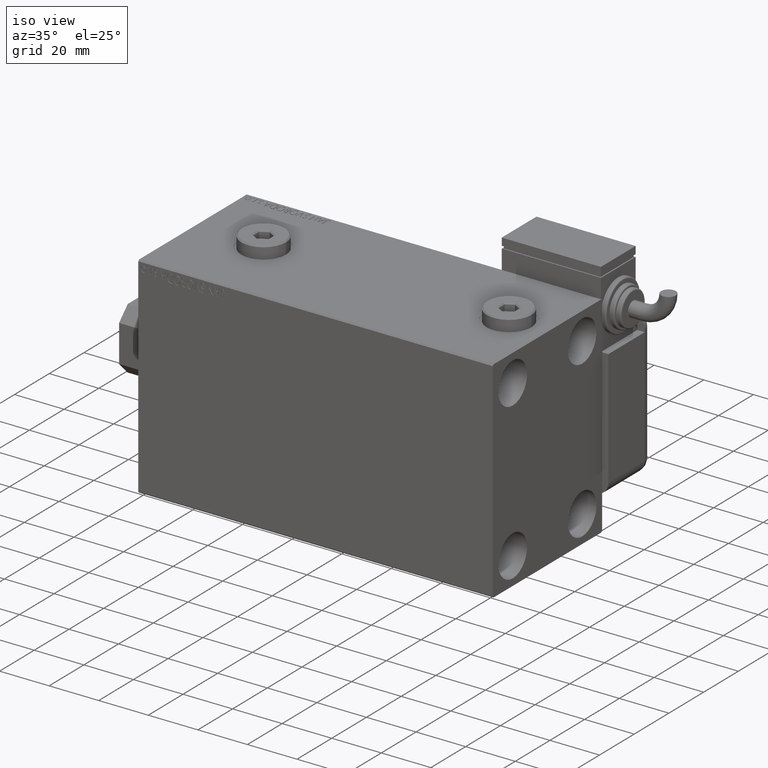
[diagram: clean part render]
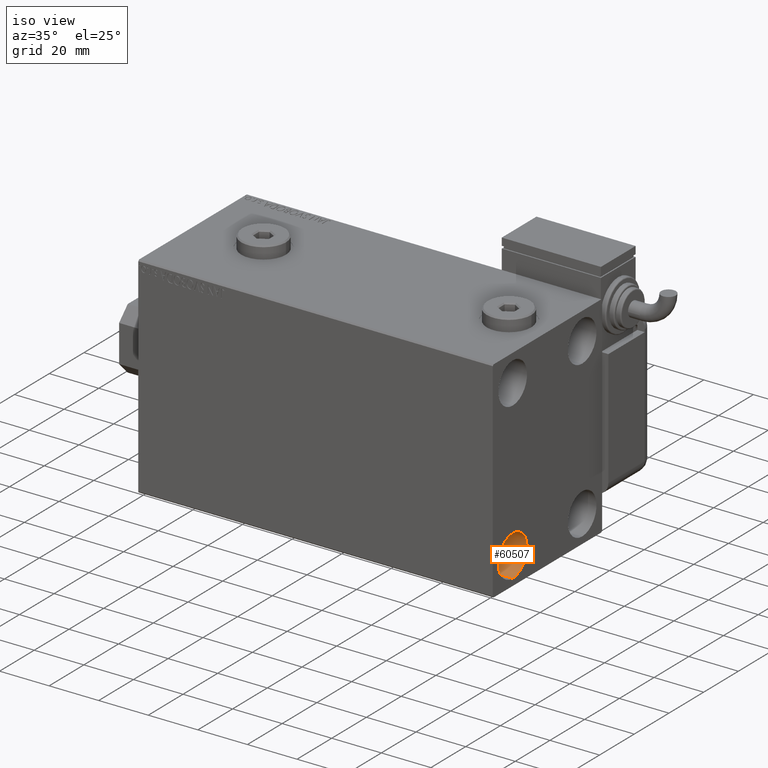
[diagram: same view with one face highlighted and labeled with its STEP entity id]
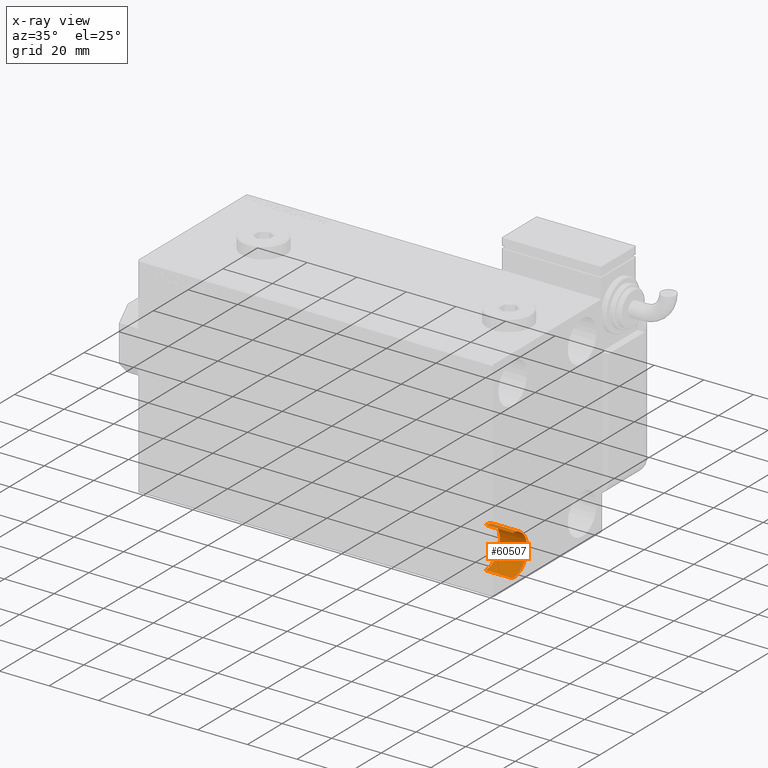
[diagram: x-ray of the same camera — body ghosted, the highlighted face saturated]
A machine part, iso view. The second image highlights one B-rep face of the part: STEP entity #60507.
The next image is the same camera in x-ray: the body ghosted, the highlighted face saturated — about 0% of this face is hidden behind the body in this view.
In plain terms, the highlighted cylindrical surface (edge-blend (fillet) strip) has radius 8.25 mm, axis along (1, 0, 0).
Its self-contained STEP definition (entity closure, byte-faithful):
#389 = ORIENTED_EDGE ( 'NONE', *, *, #42769, .T. ) ;
#2948 = FACE_OUTER_BOUND ( 'NONE', #38421, .T. ) ;
#3815 = DIRECTION ( 'NONE',  ( 1.000000000000000000, -0.000000000000000000, -0.000000000000000000 ) ) ;
#4169 = CARTESIAN_POINT ( 'NONE',  ( 143.0000000000000000, -20.00000000000000355, -23.24999999999999289 ) ) ;
#4449 = AXIS2_PLACEMENT_3D ( 'NONE', #29407, #19835, #15215 ) ;
#6669 = DIRECTION ( 'NONE',  ( 0.000000000000000000, 0.000000000000000000, -1.000000000000000000 ) ) ;
#7424 = VECTOR ( 'NONE', #53845, 1000.000000000000000 ) ;
#7878 = CIRCLE ( 'NONE', #8844, 8.250000000000000000 ) ;
#8844 = AXIS2_PLACEMENT_3D ( 'NONE', #46999, #56559, #19829 ) ;
#11280 = LINE ( 'NONE', #20838, #7424 ) ;
#15215 = DIRECTION ( 'NONE',  ( 0.000000000000000000, 0.000000000000000000, 1.000000000000000000 ) ) ;
#16486 = EDGE_CURVE ( 'NONE', #52651, #31741, #11280, .T. ) ;
#18514 = ORIENTED_EDGE ( 'NONE', *, *, #31996, .F. ) ;
#19206 = CIRCLE ( 'NONE', #4449, 8.250000000000000000 ) ;
#19829 = DIRECTION ( 'NONE',  ( 0.000000000000000000, 0.000000000000000000, 1.000000000000000000 ) ) ;
#19835 = DIRECTION ( 'NONE',  ( -1.000000000000000000, -0.000000000000000000, -0.000000000000000000 ) ) ;
#20838 = CARTESIAN_POINT ( 'NONE',  ( 131.9999999999999716, -20.00000000000000355, -39.74999999999999289 ) ) ;
#21747 = CYLINDRICAL_SURFACE ( 'NONE', #28157, 8.250000000000000000 ) ;
#22314 = CARTESIAN_POINT ( 'NONE',  ( 131.9999999999999716, -20.00000000000000355, -23.24999999999999289 ) ) ;
#23386 = VECTOR ( 'NONE', #3815, 1000.000000000000000 ) ;
#26503 = EDGE_CURVE ( 'NONE', #46040, #31741, #19206, .T. ) ;
#27706 = CARTESIAN_POINT ( 'NONE',  ( 143.0000000000000000, -20.00000000000000355, -39.74999999999999289 ) ) ;
#28157 = AXIS2_PLACEMENT_3D ( 'NONE', #54757, #30110, #6669 ) ;
#29407 = CARTESIAN_POINT ( 'NONE',  ( 143.0000000000000000, -20.00000000000000355, -31.49999999999999289 ) ) ;
#30110 = DIRECTION ( 'NONE',  ( 1.000000000000000000, -0.000000000000000000, -0.000000000000000000 ) ) ;
#31741 = VERTEX_POINT ( 'NONE', #27706 ) ;
#31996 = EDGE_CURVE ( 'NONE', #33858, #46040, #35901, .T. ) ;
#33858 = VERTEX_POINT ( 'NONE', #54660 ) ;
#35901 = LINE ( 'NONE', #22314, #23386 ) ;
#38421 = EDGE_LOOP ( 'NONE', ( #18514, #389, #55019, #48458 ) ) ;
#41070 = CARTESIAN_POINT ( 'NONE',  ( 131.9999999999999716, -20.00000000000000355, -39.74999999999999289 ) ) ;
#42769 = EDGE_CURVE ( 'NONE', #33858, #52651, #7878, .T. ) ;
#46040 = VERTEX_POINT ( 'NONE', #4169 ) ;
#46999 = CARTESIAN_POINT ( 'NONE',  ( 131.9999999999999716, -20.00000000000000355, -31.49999999999999289 ) ) ;
#48458 = ORIENTED_EDGE ( 'NONE', *, *, #26503, .F. ) ;
#52651 = VERTEX_POINT ( 'NONE', #41070 ) ;
#53845 = DIRECTION ( 'NONE',  ( 1.000000000000000000, -0.000000000000000000, -0.000000000000000000 ) ) ;
#54660 = CARTESIAN_POINT ( 'NONE',  ( 131.9999999999999716, -20.00000000000000355, -23.24999999999999289 ) ) ;
#54757 = CARTESIAN_POINT ( 'NONE',  ( 131.9999999999999716, -20.00000000000000355, -31.49999999999999289 ) ) ;
#55019 = ORIENTED_EDGE ( 'NONE', *, *, #16486, .T. ) ;
#56559 = DIRECTION ( 'NONE',  ( -1.000000000000000000, -0.000000000000000000, -0.000000000000000000 ) ) ;
#60507 = ADVANCED_FACE ( 'NONE', ( #2948 ), #21747, .F. ) ;